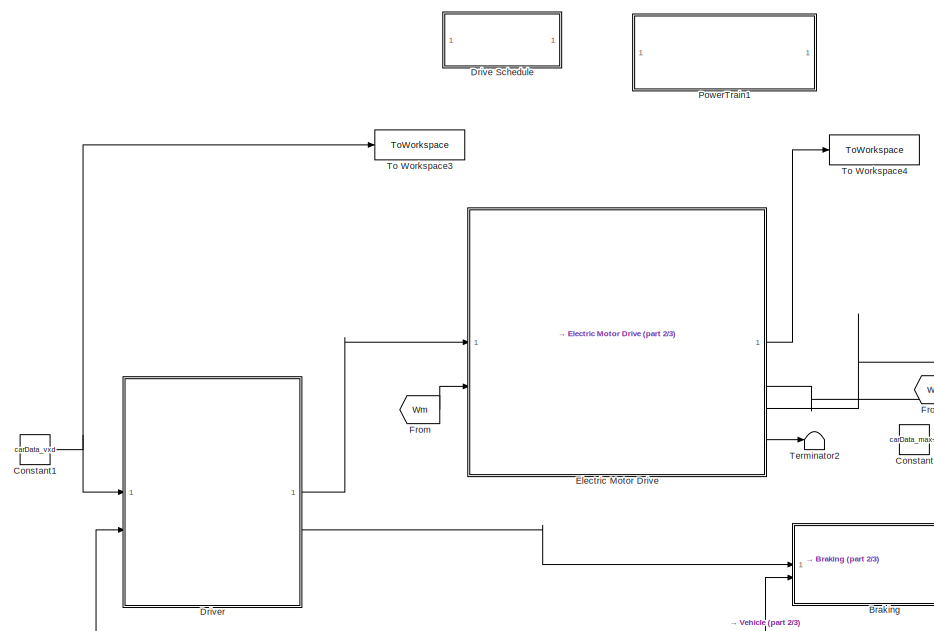
[diagram: root canvas - part 1/3, left side, full height]
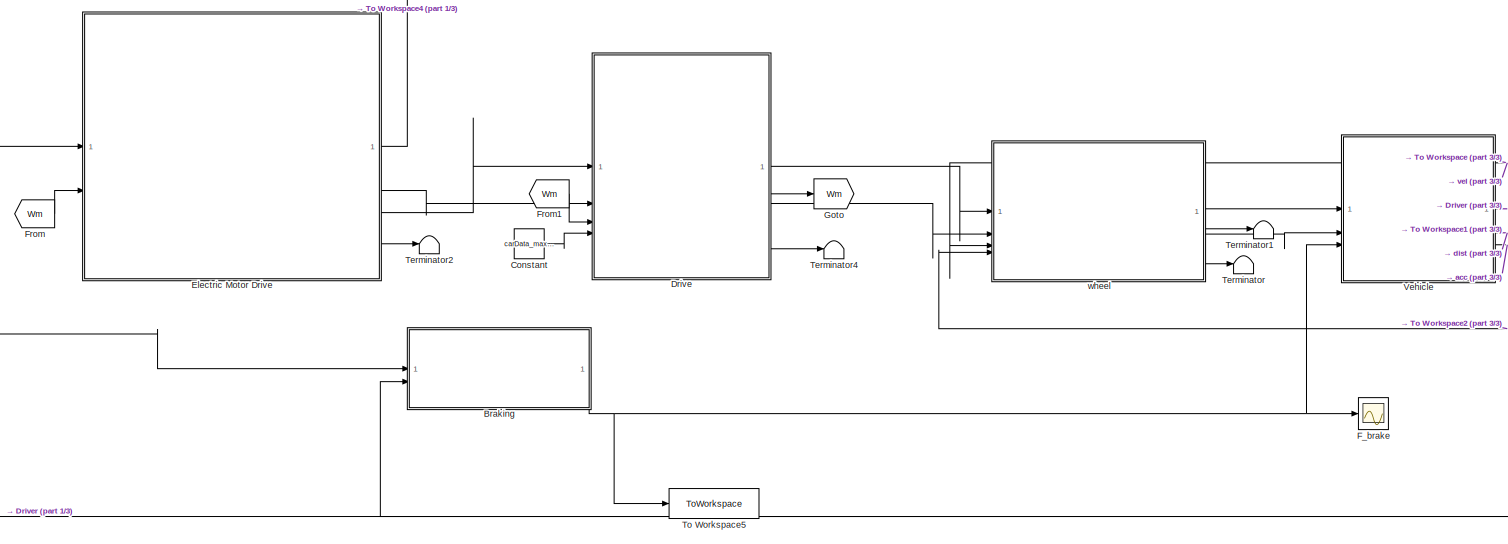
[diagram: root canvas - part 2/3, middle left region]
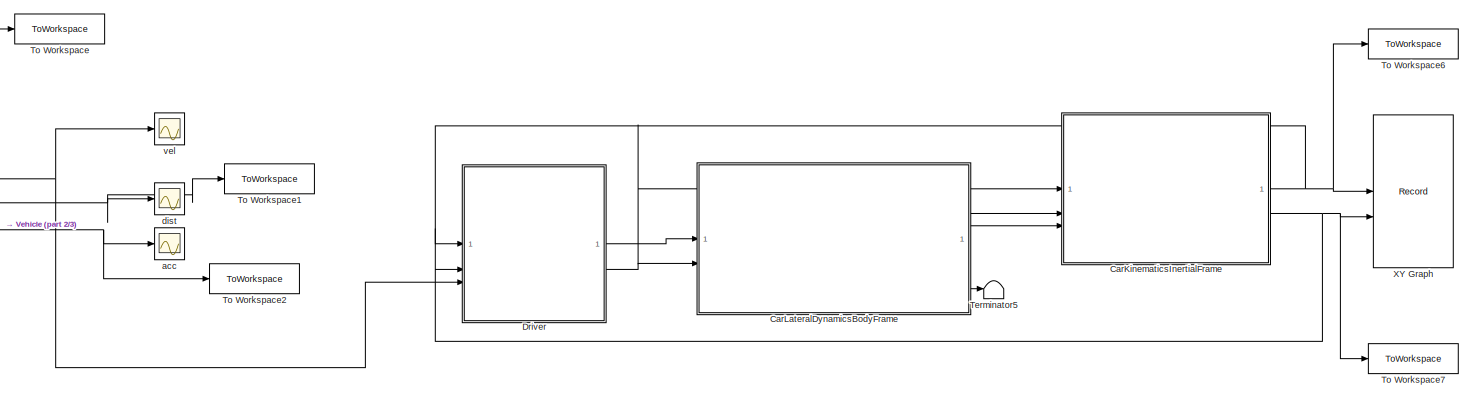
[diagram: root canvas - part 3/3, middle right region]
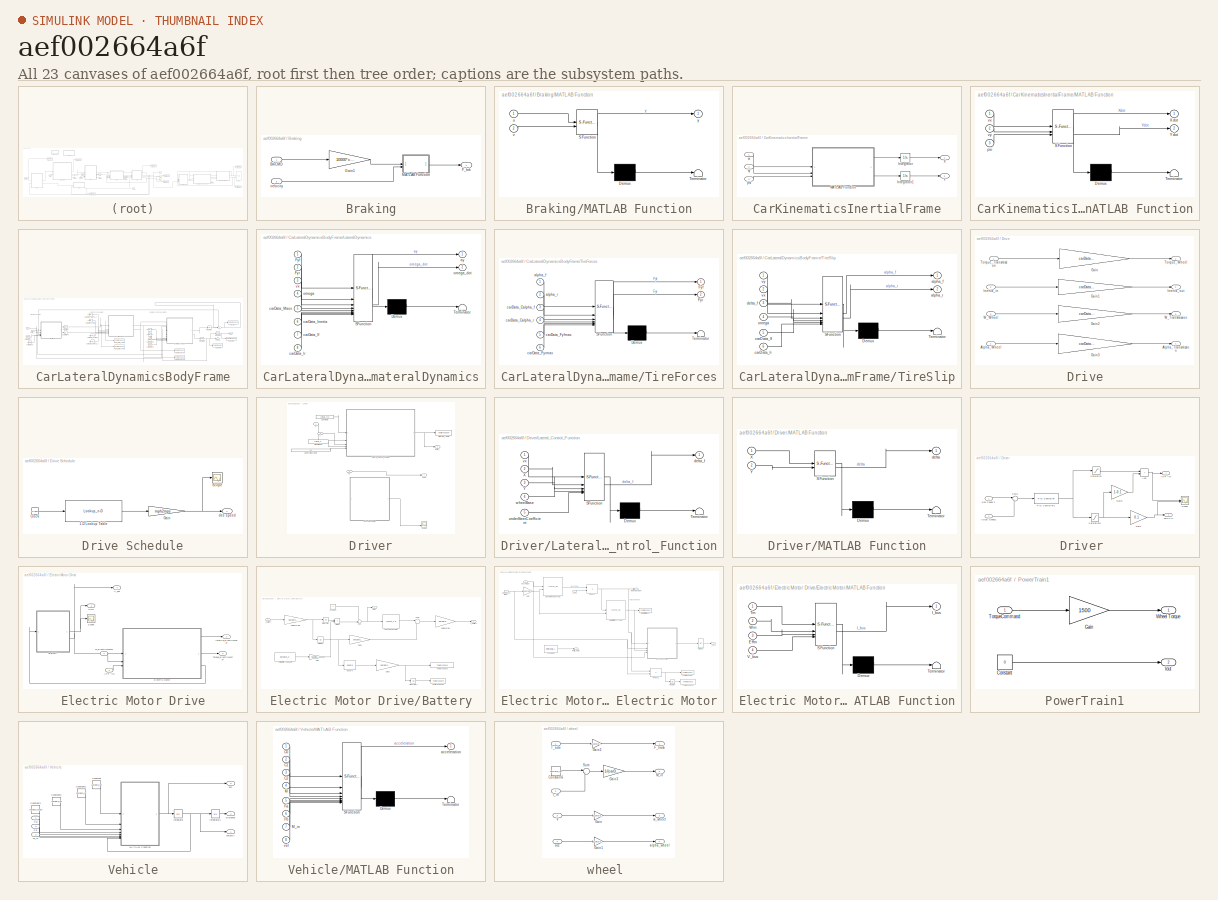
[diagram: thumbnail index - all 23 canvases of the model, root first then tree order]
MODEL slx_aef002664a6f
KIND model
CONFIG AbsTol = auto
CONFIG EnableMultiTasking = off
CONFIG FixedStep = 0.01
CONFIG MaxStep = auto
CONFIG MinStep = auto
CONFIG RelTol = 1e-3
CONFIG SampleTimeConstraint = Unconstrained
CONFIG SolverName = VariableStepAuto
CONFIG StartTime = 0.0
CONFIG StopTime = 1000
BLOCK [SubSystem] Braking
BLOCK [Inport] Braking/BrkCMD 
BLOCK [Outport] Braking/F_brk 
  VectorParamsAs1DForOutWhenUnconnected = off
BLOCK [Gain] Braking/Gain1
  Gain = 10000*carData_r
BLOCK [SubSystem] Braking/MATLAB Function
  ErrorFcn = Stateflow.Translate.translate
  PermitHierarchicalResolution = ExplicitOnly
  SFBlockType = MATLAB Function
  TreatAsAtomicUnit = on
BLOCK [Demux] Braking/MATLAB Function/ Demux 
  Outputs = 1
BLOCK [S-Function] Braking/MATLAB Function/ SFunction 
  EnableBusSupport = on
  FunctionName = sf_sfun
  PortCounts = [2 2]
  SFcnIsStateOwnerBlock = off
  SFunctionDeploymentMode = off
  Tag = Stateflow S-Function 7
BLOCK [Terminator] Braking/MATLAB Function/ Terminator 
BLOCK [Inport] Braking/MATLAB Function/u
BLOCK [Inport] Braking/MATLAB Function/v
  Port = 2
BLOCK [Outport] Braking/MATLAB Function/y
BLOCK [Inport] Braking/velocity 
  Port = 2
BLOCK [SubSystem] CarKinematicsInertialFrame
BLOCK [Integrator] CarKinematicsInertialFrame/Integrator
  InitialCondition = carData_init_X0
BLOCK [Integrator] CarKinematicsInertialFrame/Integrator1
  InitialCondition = carData_init_Y0
BLOCK [SubSystem] CarKinematicsInertialFrame/MATLAB Function
  ErrorFcn = Stateflow.Translate.translate
  PermitHierarchicalResolution = ExplicitOnly
  SFBlockType = MATLAB Function
  TreatAsAtomicUnit = on
BLOCK [Demux] CarKinematicsInertialFrame/MATLAB Function/ Demux 
  Outputs = 1
BLOCK [S-Function] CarKinematicsInertialFrame/MATLAB Function/ SFunction 
  EnableBusSupport = on
  FunctionName = sf_sfun
  PortCounts = [3 3]
  SFcnIsStateOwnerBlock = off
  SFunctionDeploymentMode = off
  Tag = Stateflow S-Function 1
BLOCK [Terminator] CarKinematicsInertialFrame/MATLAB Function/ Terminator 
BLOCK [Outport] CarKinematicsInertialFrame/MATLAB Function/Xdot
BLOCK [Outport] CarKinematicsInertialFrame/MATLAB Function/Ydot
  Port = 2
BLOCK [Inport] CarKinematicsInertialFrame/MATLAB Function/psi
  Port = 3
BLOCK [Inport] CarKinematicsInertialFrame/MATLAB Function/vx
BLOCK [Inport] CarKinematicsInertialFrame/MATLAB Function/vy
  Port = 2
BLOCK [Outport] CarKinematicsInertialFrame/X
BLOCK [Outport] CarKinematicsInertialFrame/Y
  Port = 2
BLOCK [Inport] CarKinematicsInertialFrame/psi
  Port = 3
BLOCK [Inport] CarKinematicsInertialFrame/vx
BLOCK [Inport] CarKinematicsInertialFrame/vy
  Port = 2
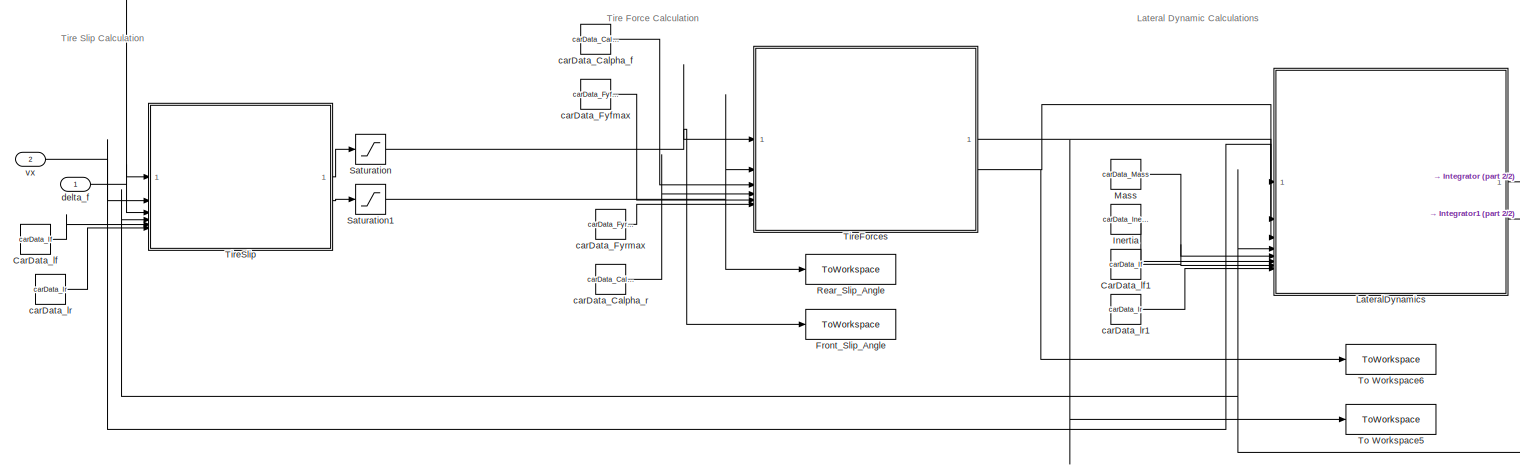
[diagram: CarLateralDynamicsBodyFrame - part 1/2, most of the canvas]
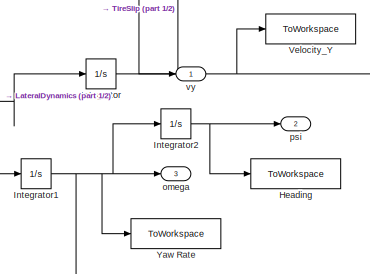
[diagram: CarLateralDynamicsBodyFrame - part 2/2, middle right region]
BLOCK [SubSystem] CarLateralDynamicsBodyFrame
BLOCK [Constant] CarLateralDynamicsBodyFrame/CarData_lf
  Value = carData_lf
BLOCK [Constant] CarLateralDynamicsBodyFrame/CarData_lf1
  Value = carData_lf
BLOCK [ToWorkspace] CarLateralDynamicsBodyFrame/Front_Slip_Angle
  FixptAsFi = on
  MaxDataPoints = inf
  SampleTime = -1
  SaveFormat = Timeseries
  VariableName = alpha_f
BLOCK [ToWorkspace] CarLateralDynamicsBodyFrame/Heading
  FixptAsFi = on
  MaxDataPoints = inf
  SampleTime = -1
  SaveFormat = Timeseries
  VariableName = psi
BLOCK [Constant] CarLateralDynamicsBodyFrame/Inertia
  Value = carData_Inertia
BLOCK [Integrator] CarLateralDynamicsBodyFrame/Integrator
  InitialCondition = carData_init_vy0
BLOCK [Integrator] CarLateralDynamicsBodyFrame/Integrator1
  InitialCondition = carData_init_omega0
BLOCK [Integrator] CarLateralDynamicsBodyFrame/Integrator2
  InitialCondition = carData_init_psi0
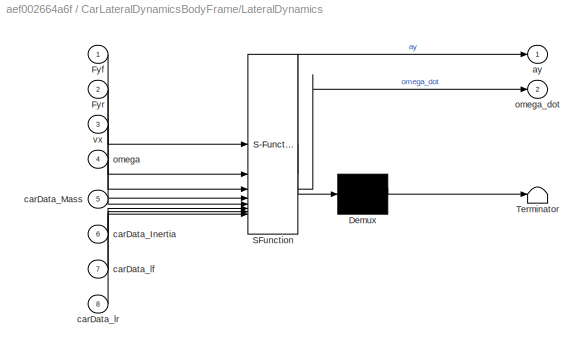
BLOCK [SubSystem] CarLateralDynamicsBodyFrame/LateralDynamics
  ErrorFcn = Stateflow.Translate.translate
  PermitHierarchicalResolution = ExplicitOnly
  SFBlockType = MATLAB Function
  TreatAsAtomicUnit = on
BLOCK [Demux] CarLateralDynamicsBodyFrame/LateralDynamics/ Demux 
  Outputs = 1
BLOCK [S-Function] CarLateralDynamicsBodyFrame/LateralDynamics/ SFunction 
  EnableBusSupport = on
  FunctionName = sf_sfun
  PortCounts = [8 3]
  SFcnIsStateOwnerBlock = off
  SFunctionDeploymentMode = off
  Tag = Stateflow S-Function 4
BLOCK [Terminator] CarLateralDynamicsBodyFrame/LateralDynamics/ Terminator 
BLOCK [Inport] CarLateralDynamicsBodyFrame/LateralDynamics/Fyf
BLOCK [Inport] CarLateralDynamicsBodyFrame/LateralDynamics/Fyr
  Port = 2
BLOCK [Outport] CarLateralDynamicsBodyFrame/LateralDynamics/ay
BLOCK [Inport] CarLateralDynamicsBodyFrame/LateralDynamics/carData_Inertia
  Port = 6
BLOCK [Inport] CarLateralDynamicsBodyFrame/LateralDynamics/carData_Mass
  Port = 5
BLOCK [Inport] CarLateralDynamicsBodyFrame/LateralDynamics/carData_lf
  Port = 7
BLOCK [Inport] CarLateralDynamicsBodyFrame/LateralDynamics/carData_lr
  Port = 8
BLOCK [Inport] CarLateralDynamicsBodyFrame/LateralDynamics/omega
  Port = 4
BLOCK [Outport] CarLateralDynamicsBodyFrame/LateralDynamics/omega_dot
  Port = 2
BLOCK [Inport] CarLateralDynamicsBodyFrame/LateralDynamics/vx
  Port = 3
BLOCK [Constant] CarLateralDynamicsBodyFrame/Mass
  Value = carData_Mass
BLOCK [ToWorkspace] CarLateralDynamicsBodyFrame/Rear_Slip_Angle
  FixptAsFi = on
  MaxDataPoints = inf
  SampleTime = -1
  SaveFormat = Timeseries
  VariableName = alpha_r
BLOCK [Saturate] CarLateralDynamicsBodyFrame/Saturation
  LowerLimit = -carData_maxAlpha
  UpperLimit = carData_maxAlpha
BLOCK [Saturate] CarLateralDynamicsBodyFrame/Saturation1
  LowerLimit = -carData_maxAlpha
  UpperLimit = carData_maxAlpha
BLOCK [SubSystem] CarLateralDynamicsBodyFrame/TireForces
  ErrorFcn = Stateflow.Translate.translate
  PermitHierarchicalResolution = ExplicitOnly
  SFBlockType = MATLAB Function
  TreatAsAtomicUnit = on
BLOCK [Demux] CarLateralDynamicsBodyFrame/TireForces/ Demux 
  Outputs = 1
BLOCK [S-Function] CarLateralDynamicsBodyFrame/TireForces/ SFunction 
  EnableBusSupport = on
  FunctionName = sf_sfun
  PortCounts = [6 3]
  SFcnIsStateOwnerBlock = off
  SFunctionDeploymentMode = off
  Tag = Stateflow S-Function 5
BLOCK [Terminator] CarLateralDynamicsBodyFrame/TireForces/ Terminator 
BLOCK [Outport] CarLateralDynamicsBodyFrame/TireForces/Fyf
BLOCK [Outport] CarLateralDynamicsBodyFrame/TireForces/Fyr
  Port = 2
BLOCK [Inport] CarLateralDynamicsBodyFrame/TireForces/alpha_f
BLOCK [Inport] CarLateralDynamicsBodyFrame/TireForces/alpha_r
  Port = 2
BLOCK [Inport] CarLateralDynamicsBodyFrame/TireForces/carData_Calpha_f
  Port = 3
BLOCK [Inport] CarLateralDynamicsBodyFrame/TireForces/carData_Calpha_r
  Port = 4
BLOCK [Inport] CarLateralDynamicsBodyFrame/TireForces/carData_Fyfmax
  Port = 5
BLOCK [Inport] CarLateralDynamicsBodyFrame/TireForces/carData_Fyrmax
  Port = 6
BLOCK [SubSystem] CarLateralDynamicsBodyFrame/TireSlip
  ErrorFcn = Stateflow.Translate.translate
  PermitHierarchicalResolution = ExplicitOnly
  SFBlockType = MATLAB Function
  TreatAsAtomicUnit = on
BLOCK [Demux] CarLateralDynamicsBodyFrame/TireSlip/ Demux 
  Outputs = 1
BLOCK [S-Function] CarLateralDynamicsBodyFrame/TireSlip/ SFunction 
  EnableBusSupport = on
  FunctionName = sf_sfun
  PortCounts = [6 3]
  SFcnIsStateOwnerBlock = off
  SFunctionDeploymentMode = off
  Tag = Stateflow S-Function 6
BLOCK [Terminator] CarLateralDynamicsBodyFrame/TireSlip/ Terminator 
BLOCK [Outport] CarLateralDynamicsBodyFrame/TireSlip/alpha_f
BLOCK [Outport] CarLateralDynamicsBodyFrame/TireSlip/alpha_r
  Port = 2
BLOCK [Inport] CarLateralDynamicsBodyFrame/TireSlip/carData_lf
  Port = 5
BLOCK [Inport] CarLateralDynamicsBodyFrame/TireSlip/carData_lr
  Port = 6
BLOCK [Inport] CarLateralDynamicsBodyFrame/TireSlip/delta_f
  Port = 3
BLOCK [Inport] CarLateralDynamicsBodyFrame/TireSlip/omega
  Port = 4
BLOCK [Inport] CarLateralDynamicsBodyFrame/TireSlip/vx
  Port = 2
BLOCK [Inport] CarLateralDynamicsBodyFrame/TireSlip/vy
BLOCK [ToWorkspace] CarLateralDynamicsBodyFrame/To Workspace5
  FixptAsFi = on
  MaxDataPoints = inf
  SampleTime = -1
  SaveFormat = Timeseries
  VariableName = Fyf
BLOCK [ToWorkspace] CarLateralDynamicsBodyFrame/To Workspace6
  FixptAsFi = on
  MaxDataPoints = inf
  SampleTime = -1
  SaveFormat = Timeseries
  VariableName = Fyr
BLOCK [ToWorkspace] CarLateralDynamicsBodyFrame/Velocity_Y
  FixptAsFi = on
  MaxDataPoints = inf
  SampleTime = -1
  SaveFormat = Timeseries
  VariableName = vy
BLOCK [ToWorkspace] CarLateralDynamicsBodyFrame/Yaw Rate
  FixptAsFi = on
  MaxDataPoints = inf
  SampleTime = -1
  SaveFormat = Timeseries
  VariableName = omega
BLOCK [Constant] CarLateralDynamicsBodyFrame/carData_Calpha_f
  Value = carData_Calpha_f
BLOCK [Constant] CarLateralDynamicsBodyFrame/carData_Calpha_r
  Value = carData_Calpha_r
BLOCK [Constant] CarLateralDynamicsBodyFrame/carData_Fyfmax
  Value = carData_Fyfmax
BLOCK [Constant] CarLateralDynamicsBodyFrame/carData_Fyrmax
  Value = carData_Fyrmax
BLOCK [Constant] CarLateralDynamicsBodyFrame/carData_lr
  Value = carData_lr
BLOCK [Constant] CarLateralDynamicsBodyFrame/carData_lr1
  Value = carData_lr
BLOCK [Inport] CarLateralDynamicsBodyFrame/delta_f
BLOCK [Outport] CarLateralDynamicsBodyFrame/omega
  Port = 3
BLOCK [Outport] CarLateralDynamicsBodyFrame/psi
  Port = 2
BLOCK [Inport] CarLateralDynamicsBodyFrame/vx
  Port = 2
BLOCK [Outport] CarLateralDynamicsBodyFrame/vy
BLOCK [Constant] Constant
  Value = carData_maxAlpha
BLOCK [Constant] Constant1
  Value = carData_vxd
BLOCK [SubSystem] Drive
BLOCK [SubSystem] Drive Schedule
  Commented = on
BLOCK [Lookup_n-D] Drive Schedule/1-D Lookup Table
  BreakpointsForDimension1 = Time
  InputPortMap = u0
  InternalRulePriority = Speed
  NumberOfTableDimensions = 1
  RndMeth = Simplest
  Table = DriveData
BLOCK [Clock] Drive Schedule/Clock
  DisplayTime = on
BLOCK [Gain] Drive Schedule/Gain
  Gain = mph2mps
BLOCK [Scope] Drive Schedule/Scope
  Floating = off
  NumInputPorts = 1
  ScopeSpecificationString = Simulink.scopes.TimeScopeBlockCfg('CurrentConfiguration', extmgr.ConfigurationSet(extmgr.Configuration('Core','General UI',true),extmgr.Configuration('Core','Source UI',true),extmgr.Configuration('Sources','WiredSimulink',true,'DataLoggingVariableName','ScopeData4'),extmgr.Configuration('Visuals','Time Domain',true,'SerializedDisplays',{struct('MinYLimReal','-3.1684','MaxYLimReal','28.51556','YLab...<+1407ch>
BLOCK [Outport] Drive Schedule/des speed 
  VectorParamsAs1DForOutWhenUnconnected = off
BLOCK [Outport] Drive/Alpha_Transmission
  Port = 4
BLOCK [Inport] Drive/Alpha_Wheel
  Port = 4
BLOCK [Gain] Drive/Gain
  Gain = carData_FDG
BLOCK [Gain] Drive/Gain1
  Gain = carData_FDG^2
BLOCK [Gain] Drive/Gain2
  Gain = carData_FDG
BLOCK [Gain] Drive/Gain3
  Gain = carData_FDG
BLOCK [Inport] Drive/Inertia_in
  Port = 2
BLOCK [Outport] Drive/Inertia_out
  Port = 2
BLOCK [Inport] Drive/Torque_Transmission 
BLOCK [Outport] Drive/Torque_Wheel
BLOCK [Outport] Drive/W_Transmission
  Port = 3
BLOCK [Inport] Drive/W_Wheel
  Port = 3
BLOCK [SubSystem] Driver
BLOCK [SubSystem] Driver 
BLOCK [Outport] Driver /APP (%)
BLOCK [Inport] Driver /Actual Speed1
  Port = 2
BLOCK [Sum] Driver /Add
  IconShape = rectangular
BLOCK [Inport] Driver /Des Speed 1
BLOCK [Outport] Driver /FBPP%
  Port = 2
BLOCK [Gain] Driver /Gain
  Gain = 0.1
BLOCK [Gain] Driver /Gain1
  Gain = 1-0.1
BLOCK [Reference] Driver /PID Controller1  REF=slpidlib/PID Controller
  SourceBlock = slpidlib/PID Controller
  SourceType = PID 1dof
BLOCK [Saturate] Driver /Saturation
BLOCK [Saturate] Driver /Saturation1
BLOCK [Scope] Driver /Scope
  Floating = off
  NumInputPorts = 2
  ScopeSpecificationString = Simulink.scopes.TimeScopeBlockCfg('CurrentConfiguration', extmgr.ConfigurationSet(extmgr.Configuration('Core','General UI',true),extmgr.Configuration('Core','Source UI',true),extmgr.Configuration('Sources','WiredSimulink',true,'DataLoggingVariableName','ScopeData1'),extmgr.Configuration('Visuals','Time Domain',true),extmgr.Configuration('Tools','Plot Navigation',true),extmgr.Configuration('Tools',...<+40ch>
BLOCK [Sum] Driver /Sum1
  Inputs = |+-
BLOCK [Constant] Driver/Constant2
  Value = carData_vxd
BLOCK [SubSystem] Driver/Lateral_Control_Function
  ErrorFcn = Stateflow.Translate.translate
  PermitHierarchicalResolution = ExplicitOnly
  SFBlockType = MATLAB Function
  TreatAsAtomicUnit = on
BLOCK [Demux] Driver/Lateral_Control_Function/ Demux 
  Outputs = 1
BLOCK [S-Function] Driver/Lateral_Control_Function/ SFunction 
  EnableBusSupport = on
  FunctionName = sf_sfun
  PortCounts = [5 2]
  SFcnIsStateOwnerBlock = off
  SFunctionDeploymentMode = off
  Tag = Stateflow S-Function 8
BLOCK [Terminator] Driver/Lateral_Control_Function/ Terminator 
BLOCK [Inport] Driver/Lateral_Control_Function/X
  Port = 2
BLOCK [Inport] Driver/Lateral_Control_Function/Y
  Port = 3
BLOCK [Outport] Driver/Lateral_Control_Function/delta_f
BLOCK [Inport] Driver/Lateral_Control_Function/underSteerCoefficient
  Port = 5
BLOCK [Inport] Driver/Lateral_Control_Function/vx
BLOCK [Inport] Driver/Lateral_Control_Function/wheelBase
  Port = 4
BLOCK [SubSystem] Driver/MATLAB Function
  Commented = on
  ErrorFcn = Stateflow.Translate.translate
  PermitHierarchicalResolution = ExplicitOnly
  SFBlockType = MATLAB Function
  TreatAsAtomicUnit = on
BLOCK [Demux] Driver/MATLAB Function/ Demux 
  Outputs = 1
BLOCK [S-Function] Driver/MATLAB Function/ SFunction 
  EnableBusSupport = on
  FunctionName = sf_sfun
  PortCounts = [2 2]
  SFcnIsStateOwnerBlock = off
  SFunctionDeploymentMode = off
  Tag = Stateflow S-Function 9
BLOCK [Terminator] Driver/MATLAB Function/ Terminator 
BLOCK [Inport] Driver/MATLAB Function/X
BLOCK [Inport] Driver/MATLAB Function/Y
  Port = 2
BLOCK [Outport] Driver/MATLAB Function/delta
BLOCK [Scope] Driver/Scope
  Commented = on
  Floating = off
  NumInputPorts = 3
  ScopeSpecificationString = Simulink.scopes.TimeScopeBlockCfg('CurrentConfiguration', extmgr.ConfigurationSet(extmgr.Configuration('Core','General UI',true),extmgr.Configuration('Core','Source UI',true),extmgr.Configuration('Sources','WiredSimulink',true),extmgr.Configuration('Visuals','Time Domain',true,'SerializedDisplays',{struct('MinYLimReal','-114.8982','MaxYLimReal','1034.08378','YLabelReal','','MinYLimMag',' 0.00000',...<+2714ch>
BLOCK [ToWorkspace] Driver/Steering_Angle
  FixptAsFi = on
  MaxDataPoints = inf
  SampleTime = -1
  SaveFormat = Timeseries
  VariableName = delta_f
BLOCK [Constant] Driver/UnderSteerCoeff
  Value = Cd
BLOCK [Inport] Driver/VX
  Port = 3
BLOCK [Outport] Driver/Vxd1
  Port = 2
BLOCK [Constant] Driver/WheelBase
  Value = carData_lf + carData_lr
BLOCK [Inport] Driver/X
BLOCK [Inport] Driver/Y
  Port = 2
BLOCK [Outport] Driver/delta_f
BLOCK [SubSystem] Electric Motor Drive
BLOCK [Inport] Electric Motor Drive/APP (%)
BLOCK [SubSystem] Electric Motor Drive/Battery
BLOCK [Gain] Electric Motor Drive/Battery/Cells in Parallel
  Gain = batData_numParallel
BLOCK [Gain] Electric Motor Drive/Battery/Cells in Series
  Gain = batData_numSeries
BLOCK [Constant] Electric Motor Drive/Battery/Constant
BLOCK [Product] Electric Motor Drive/Battery/Divide
  Inputs = */
BLOCK [Gain] Electric Motor Drive/Battery/Gain
  Gain = 3600/batData_numParallel
BLOCK [Gain] Electric Motor Drive/Battery/Gain1
  Gain = batData_Rint
BLOCK [Gain] Electric Motor Drive/Battery/Gain2
  Gain = batData_Rint
BLOCK [Inport] Electric Motor Drive/Battery/I_battery
BLOCK [Integrator] Electric Motor Drive/Battery/Integrator
BLOCK [Integrator] Electric Motor Drive/Battery/Integrator1
BLOCK [Lookup_n-D] Electric Motor Drive/Battery/OCV Lookup Table
  BreakpointsForDimension1 = batData_SOC
  BreakpointsForDimension3 = [5, 7]
  InputPortMap = u0
  InternalRulePriority = Speed
  NumberOfTableDimensions = 1
  RndMeth = Simplest
  Table = batData_OCV
BLOCK [Outport] Electric Motor Drive/Battery/SOC
BLOCK [Math] Electric Motor Drive/Battery/Square
  Operator = square
BLOCK [Sum] Electric Motor Drive/Battery/Sum
  Inputs = +-|
BLOCK [Sum] Electric Motor Drive/Battery/Sum1
  Inputs = |+-
BLOCK [ToWorkspace] Electric Motor Drive/Battery/To Workspace
  FixptAsFi = on
  MaxDataPoints = inf
  SampleTime = -1
  SaveFormat = Timeseries
  VariableName = BatteryPowerLosses
BLOCK [ToWorkspace] Electric Motor Drive/Battery/To Workspace1
  FixptAsFi = on
  MaxDataPoints = inf
  SampleTime = -1
  SaveFormat = Timeseries
  VariableName = BatteryEnergy
BLOCK [Constant] Electric Motor Drive/Battery/Total Battery Capacity
  Value = batData_C
BLOCK [UnitDelay] Electric Motor Drive/Battery/Unit Delay
  HasFrameUpgradeWarning = on
  SampleTime = -1
BLOCK [Outport] Electric Motor Drive/Battery/V_battery
  Port = 2
BLOCK [SubSystem] Electric Motor Drive/Electric Motor
BLOCK [Inport] Electric Motor Drive/Electric Motor/APP (%)
  Port = 3
BLOCK [Inport] Electric Motor Drive/Electric Motor/Bus Voltage
BLOCK [Constant] Electric Motor Drive/Electric Motor/Constant1
  Value = motorData_Inertia
BLOCK [Gain] Electric Motor Drive/Electric Motor/Gain
  Gain = rps2rpm
BLOCK [Outport] Electric Motor Drive/Electric Motor/I_bus
  Port = 3
BLOCK [Outport] Electric Motor Drive/Electric Motor/Inertia_Motor
BLOCK [Integrator] Electric Motor Drive/Electric Motor/Integrator
BLOCK [SubSystem] Electric Motor Drive/Electric Motor/MATLAB Function
  ErrorFcn = Stateflow.Translate.translate
  PermitHierarchicalResolution = ExplicitOnly
  SFBlockType = MATLAB Function
  TreatAsAtomicUnit = on
BLOCK [Demux] Electric Motor Drive/Electric Motor/MATLAB Function/ Demux 
  Outputs = 1
BLOCK [S-Function] Electric Motor Drive/Electric Motor/MATLAB Function/ SFunction 
  EnableBusSupport = on
  FunctionName = sf_sfun
  PortCounts = [4 2]
  SFcnIsStateOwnerBlock = off
  SFunctionDeploymentMode = off
  Tag = Stateflow S-Function 3
BLOCK [Terminator] Electric Motor Drive/Electric Motor/MATLAB Function/ Terminator 
BLOCK [Inport] Electric Motor Drive/Electric Motor/MATLAB Function/Effm
  Port = 3
BLOCK [Outport] Electric Motor Drive/Electric Motor/MATLAB Function/I_bus
BLOCK [Inport] Electric Motor Drive/Electric Motor/MATLAB Function/Tm
BLOCK [Inport] Electric Motor Drive/Electric Motor/MATLAB Function/V_bus
  Port = 4
BLOCK [Inport] Electric Motor Drive/Electric Motor/MATLAB Function/Wm
  Port = 2
BLOCK [Lookup_n-D] Electric Motor Drive/Electric Motor/Max Motor Torque Table
  BreakpointsForDimension1 = motorData_vbus
  BreakpointsForDimension2 = motorData_rpm
  BreakpointsForDimension3 = [5, 7]
  InputPortMap = u0,u1
  InternalRulePriority = Speed
  RndMeth = Simplest
  Table = motorData_maxtorque
BLOCK [ToWorkspace] Electric Motor Drive/Electric Motor/Motor Efficiency
  FixptAsFi = on
  MaxDataPoints = inf
  SampleTime = -1
  SaveFormat = Timeseries
  VariableName = efficiency_motor
BLOCK [Lookup_n-D] Electric Motor Drive/Electric Motor/Motor Efficiency Table
  BreakpointsForDimension1 = motorData_eta_torque
  BreakpointsForDimension2 = motorData_eta_speed
  BreakpointsForDimension3 = [5, 7]
  InputPortMap = u0,u1
  InternalRulePriority = Speed
  RndMeth = Simplest
  Table = motorData_eta_val
BLOCK [Inport] Electric Motor Drive/Electric Motor/Motor Speed (rad//s)
  Port = 2
BLOCK [Outport] Electric Motor Drive/Electric Motor/Motor Torque (Nm)
  Port = 2
BLOCK [Product] Electric Motor Drive/Electric Motor/Product
BLOCK [Product] Electric Motor Drive/Electric Motor/Product1
BLOCK [ToWorkspace] Electric Motor Drive/Electric Motor/To Workspace
  FixptAsFi = on
  MaxDataPoints = inf
  SampleTime = -1
  SaveFormat = Timeseries
  VariableName = MotorPower
BLOCK [ToWorkspace] Electric Motor Drive/Electric Motor/To Workspace1
  FixptAsFi = on
  MaxDataPoints = inf
  SampleTime = -1
  SaveFormat = Timeseries
  VariableName = MotorEnergy
BLOCK [UnitDelay] Electric Motor Drive/Electric Motor/Unit Delay
  HasFrameUpgradeWarning = on
  SampleTime = -1
BLOCK [Outport] Electric Motor Drive/Intertia_ElectricMotor
  Port = 2
BLOCK [Outport] Electric Motor Drive/SOC
BLOCK [Scope] Electric Motor Drive/Scope
  Floating = off
  NumInputPorts = 1
  ScopeSpecificationString = Simulink.scopes.TimeScopeBlockCfg('CurrentConfiguration', extmgr.ConfigurationSet(extmgr.Configuration('Core','General UI',true),extmgr.Configuration('Core','Source UI',true),extmgr.Configuration('Sources','WiredSimulink',true,'DataLoggingVariableName','ScopeData1'),extmgr.Configuration('Visuals','Time Domain',true),extmgr.Configuration('Tools','Plot Navigation',true),extmgr.Configuration('Tools',...<+40ch>
BLOCK [Outport] Electric Motor Drive/Torque_ElectricMotor
  Port = 3
BLOCK [Outport] Electric Motor Drive/V_bat
  Port = 4
BLOCK [Inport] Electric Motor Drive/W_ElectricMotor
  Port = 2
BLOCK [Scope] F_brake
  Floating = off
  NumInputPorts = 1
  ScopeSpecificationString = Simulink.scopes.TimeScopeBlockCfg('CurrentConfiguration', extmgr.ConfigurationSet(extmgr.Configuration('Core','General UI',true),extmgr.Configuration('Core','Source UI',true),extmgr.Configuration('Sources','WiredSimulink',true,'DataLoggingVariableName','ScopeData4'),extmgr.Configuration('Visuals','Time Domain',true,'SerializedDisplays',{struct('MinYLimReal','-450.00000','MaxYLimReal','4050.00000',...<+1384ch>
BLOCK [From] From
  GotoTag = Wm
BLOCK [From] From1
  GotoTag = Wm
BLOCK [Goto] Goto
  GotoTag = Wm
BLOCK [SubSystem] PowerTrain1
  Commented = on
BLOCK [Constant] PowerTrain1/Constant
  Value = 0
BLOCK [Gain] PowerTrain1/Gain
  Gain = 1500
BLOCK [Outport] PowerTrain1/Iout
  Port = 2
BLOCK [Inport] PowerTrain1/TorqueCommand
BLOCK [Outport] PowerTrain1/Wheel Torque
BLOCK [Terminator] Terminator
BLOCK [Terminator] Terminator1
BLOCK [Terminator] Terminator2
BLOCK [Terminator] Terminator4
BLOCK [Terminator] Terminator5
BLOCK [ToWorkspace] To Workspace
  FixptAsFi = on
  MaxDataPoints = inf
  SampleTime = -1
  SaveFormat = Timeseries
  VariableName = vel
BLOCK [ToWorkspace] To Workspace1
  FixptAsFi = on
  MaxDataPoints = inf
  SampleTime = -1
  SaveFormat = Timeseries
  VariableName = dist
BLOCK [ToWorkspace] To Workspace2
  FixptAsFi = on
  MaxDataPoints = inf
  SampleTime = -1
  SaveFormat = Timeseries
  VariableName = acc
BLOCK [ToWorkspace] To Workspace3
  FixptAsFi = on
  MaxDataPoints = inf
  SampleTime = -1
  SaveFormat = Timeseries
  VariableName = RefSpd
BLOCK [ToWorkspace] To Workspace4
  FixptAsFi = on
  MaxDataPoints = inf
  SampleTime = -1
  SaveFormat = Timeseries
  VariableName = SOC
BLOCK [ToWorkspace] To Workspace5
  FixptAsFi = on
  MaxDataPoints = inf
  SampleTime = -1
  SaveFormat = Timeseries
  VariableName = brake
BLOCK [ToWorkspace] To Workspace6
  FixptAsFi = on
  MaxDataPoints = inf
  SampleTime = -1
  Save2DSignal = 2-D array (concatenate along first dimension)
  SaveFormat = Structure With Time
  VariableName = X
BLOCK [ToWorkspace] To Workspace7
  FixptAsFi = on
  MaxDataPoints = inf
  SampleTime = -1
  Save2DSignal = 2-D array (concatenate along first dimension)
  SaveFormat = Structure With Time
  VariableName = Y
BLOCK [SubSystem] Vehicle
BLOCK [Constant] Vehicle/Constant
  Value = carData_C0
BLOCK [Constant] Vehicle/Constant1
  Value = carData_C1
BLOCK [Constant] Vehicle/Constant2
  Value = carData_C2
BLOCK [Constant] Vehicle/Constant3
  Value = carData_Mass
BLOCK [Outport] Vehicle/Distance 
  Port = 2
  VectorParamsAs1DForOutWhenUnconnected = off
BLOCK [Inport] Vehicle/Fb 
  Port = 3
BLOCK [Inport] Vehicle/Fw 
BLOCK [Integrator] Vehicle/Integrator
  LimitOutput = on
  LowerSaturationLimit = 0
BLOCK [Integrator] Vehicle/Integrator1
BLOCK [SubSystem] Vehicle/MATLAB Function
  ErrorFcn = Stateflow.Translate.translate
  PermitHierarchicalResolution = ExplicitOnly
  SFBlockType = MATLAB Function
  TreatAsAtomicUnit = on
BLOCK [Demux] Vehicle/MATLAB Function/ Demux 
  Outputs = 1
BLOCK [S-Function] Vehicle/MATLAB Function/ SFunction 
  EnableBusSupport = on
  FunctionName = sf_sfun
  PortCounts = [8 2]
  SFcnIsStateOwnerBlock = off
  SFunctionDeploymentMode = off
  Tag = Stateflow S-Function 2
BLOCK [Terminator] Vehicle/MATLAB Function/ Terminator 
BLOCK [Inport] Vehicle/MATLAB Function/C0
BLOCK [Inport] Vehicle/MATLAB Function/C1
  Port = 2
BLOCK [Inport] Vehicle/MATLAB Function/C2
  Port = 3
BLOCK [Inport] Vehicle/MATLAB Function/Fa
  Port = 5
BLOCK [Inport] Vehicle/MATLAB Function/Fb
  Port = 6
BLOCK [Inport] Vehicle/MATLAB Function/M
  Port = 4
BLOCK [Inport] Vehicle/MATLAB Function/M_in
  Port = 7
BLOCK [Outport] Vehicle/MATLAB Function/acceleration
  VectorParamsAs1DForOutWhenUnconnected = off
BLOCK [Inport] Vehicle/MATLAB Function/vel
  Port = 8
BLOCK [Inport] Vehicle/M_in 
  Port = 2
BLOCK [Outport] Vehicle/acc
  Port = 3
BLOCK [Outport] Vehicle/velocity 
  VectorParamsAs1DForOutWhenUnconnected = off
BLOCK [Record] XY Graph
  CompatibilityTag = XY
  FileSettingsInternal = {"entries":[{"content":{"excelSettings":{"content":{},"type":"Streamout.ExcelSettings"}},"type":"Streamout.FileSettingStorage","uuid":""}],"packageUris":["http:\/\/schema.mathworks.com\/mf0\/streamout_blocks\/R2020a"],"version":"1.0"}
  Layout = [1 1]
  SignalsInternal = {"entries":[{"content":{"signals":[{"content":{"blockPath":[],"dimensions":[1],"domain":"","lineColor":"#7e2f8e","plots":[1],"port":1,"sid":[""],"signalID":9449,"signalName":"CarKinematicsInertialFrame:1"},"type":"RecordBlkView.Signal","uuid":""},{"content":{"blockPath":[],"dimensions":[1],"domain":"","lineColor":"#77ac30","plots":[1],"port":2,"sid":[""],"signalID":9453,"signalName":"CarKinematics...<+204ch>
  VisualizationBindings = {"xyplotplugin":{"info":[{"series":[{"bindingParametersList":[{"parameter":"X-Axis","signalID":9449,"signalName":"CarKinematicsInertialFrame:1"},{"parameter":"Y-Axis","signalID":9453,"signalName":"CarKinematicsInertialFrame:2"}],"seriesID":25132}],"subplotID":1}]}}
  st = -1
BLOCK [Scope] acc
  Floating = off
  NumInputPorts = 1
  ScopeSpecificationString = Simulink.scopes.TimeScopeBlockCfg('CurrentConfiguration', extmgr.ConfigurationSet(extmgr.Configuration('Core','General UI',true),extmgr.Configuration('Core','Source UI',true),extmgr.Configuration('Sources','WiredSimulink',true,'DataLoggingVariableName','ScopeData3'),extmgr.Configuration('Visuals','Time Domain',true,'SerializedDisplays',{struct('MinYLimReal','-12.30056','MaxYLimReal','74.14815','YL...<+1385ch>
BLOCK [Scope] dist
  Floating = off
  NumInputPorts = 1
  ScopeSpecificationString = Simulink.scopes.TimeScopeBlockCfg('CurrentConfiguration', extmgr.ConfigurationSet(extmgr.Configuration('Core','General UI',true),extmgr.Configuration('Core','Source UI',true),extmgr.Configuration('Sources','WiredSimulink',true,'DataLoggingVariableName','ScopeData2'),extmgr.Configuration('Visuals','Time Domain',true,'SerializedDisplays',{struct('MinYLimReal','-385.08236','MaxYLimReal','3465.74126',...<+1386ch>
BLOCK [Scope] vel
  Floating = off
  NumInputPorts = 1
  ScopeSpecificationString = Simulink.scopes.TimeScopeBlockCfg('CurrentConfiguration', extmgr.ConfigurationSet(extmgr.Configuration('Core','General UI',true),extmgr.Configuration('Core','Source UI',true),extmgr.Configuration('Sources','WiredSimulink',true,'DataLoggingVariableName','ScopeData1'),extmgr.Configuration('Visuals','Time Domain',true,'SerializedDisplays',{struct('MinYLimReal','-3.01671','MaxYLimReal','27.15039','YLa...<+1405ch>
BLOCK [SubSystem] wheel 
BLOCK [Constant] wheel /Constant6
  Value = carData_Iw
BLOCK [Outport] wheel /F_track
BLOCK [Gain] wheel /Gain
  Gain = 1/carData_r
BLOCK [Gain] wheel /Gain1
  Gain = 1/carData_r
BLOCK [Gain] wheel /Gain2
  Gain = 1/carData_r
BLOCK [Gain] wheel /Gain3
  Gain = 1/(carData_r*carData_r)
BLOCK [Inport] wheel /I_in
  Port = 2
BLOCK [Outport] wheel /M_in
  Port = 2
BLOCK [Sum] wheel /Sum
  Inputs = |++
BLOCK [Inport] wheel /T_axle
BLOCK [Inport] wheel /V
  Port = 3
BLOCK [Inport] wheel /acc
  Port = 4
BLOCK [Outport] wheel /alpha_wheel
  Port = 4
BLOCK [Outport] wheel /w_wheel
  Port = 3
ANNOTATION CarLateralDynamicsBodyFrame: Lateral Dynamic Calculations
ANNOTATION CarLateralDynamicsBodyFrame: Tire Force Calculation
ANNOTATION CarLateralDynamicsBodyFrame: Tire Slip Calculation
LINE Braking/BrkCMD :1 -> Braking/Gain1:1
LINE Braking/Gain1:1 -> Braking/MATLAB Function:1
LINE Braking/MATLAB Function:1 -> Braking/F_brk :1
LINE Braking/velocity :1 -> Braking/MATLAB Function:2
NET Braking:1 -> F_brake:1, To Workspace5:1, Vehicle:3
LINE CarKinematicsInertialFrame/Integrator1:1 -> CarKinematicsInertialFrame/Y:1
LINE CarKinematicsInertialFrame/Integrator:1 -> CarKinematicsInertialFrame/X:1
LINE CarKinematicsInertialFrame/MATLAB Function:1 -> CarKinematicsInertialFrame/Integrator:1
LINE CarKinematicsInertialFrame/MATLAB Function:2 -> CarKinematicsInertialFrame/Integrator1:1
LINE CarKinematicsInertialFrame/psi:1 -> CarKinematicsInertialFrame/MATLAB Function:3
LINE CarKinematicsInertialFrame/vx:1 -> CarKinematicsInertialFrame/MATLAB Function:1
LINE CarKinematicsInertialFrame/vy:1 -> CarKinematicsInertialFrame/MATLAB Function:2
NET CarKinematicsInertialFrame:1 -> Driver:1, To Workspace6:1, XY Graph:1
NET CarKinematicsInertialFrame:2 -> Driver:2, To Workspace7:1, XY Graph:2
LINE CarLateralDynamicsBodyFrame/CarData_lf1:1 -> CarLateralDynamicsBodyFrame/LateralDynamics:7
LINE CarLateralDynamicsBodyFrame/CarData_lf:1 -> CarLateralDynamicsBodyFrame/TireSlip:5
LINE CarLateralDynamicsBodyFrame/Inertia:1 -> CarLateralDynamicsBodyFrame/LateralDynamics:6
NET CarLateralDynamicsBodyFrame/Integrator1:1 -> CarLateralDynamicsBodyFrame/Integrator2:1, CarLateralDynamicsBodyFrame/LateralDynamics:4, CarLateralDynamicsBodyFrame/TireSlip:4, CarLateralDynamicsBodyFrame/Yaw Rate:1, CarLateralDynamicsBodyFrame/omega:1
NET CarLateralDynamicsBodyFrame/Integrator2:1 -> CarLateralDynamicsBodyFrame/Heading:1, CarLateralDynamicsBodyFrame/psi:1
NET CarLateralDynamicsBodyFrame/Integrator:1 -> CarLateralDynamicsBodyFrame/TireSlip:1, CarLateralDynamicsBodyFrame/Velocity_Y:1, CarLateralDynamicsBodyFrame/vy:1
LINE CarLateralDynamicsBodyFrame/LateralDynamics:1 -> CarLateralDynamicsBodyFrame/Integrator:1
LINE CarLateralDynamicsBodyFrame/LateralDynamics:2 -> CarLateralDynamicsBodyFrame/Integrator1:1
LINE CarLateralDynamicsBodyFrame/Mass:1 -> CarLateralDynamicsBodyFrame/LateralDynamics:5
NET CarLateralDynamicsBodyFrame/Saturation1:1 -> CarLateralDynamicsBodyFrame/Rear_Slip_Angle:1, CarLateralDynamicsBodyFrame/TireForces:2
NET CarLateralDynamicsBodyFrame/Saturation:1 -> CarLateralDynamicsBodyFrame/Front_Slip_Angle:1, CarLateralDynamicsBodyFrame/TireForces:1
NET CarLateralDynamicsBodyFrame/TireForces:1 -> CarLateralDynamicsBodyFrame/LateralDynamics:1, CarLateralDynamicsBodyFrame/To Workspace5:1
NET CarLateralDynamicsBodyFrame/TireForces:2 -> CarLateralDynamicsBodyFrame/LateralDynamics:2, CarLateralDynamicsBodyFrame/To Workspace6:1
LINE CarLateralDynamicsBodyFrame/TireSlip:1 -> CarLateralDynamicsBodyFrame/Saturation:1
LINE CarLateralDynamicsBodyFrame/TireSlip:2 -> CarLateralDynamicsBodyFrame/Saturation1:1
LINE CarLateralDynamicsBodyFrame/carData_Calpha_f:1 -> CarLateralDynamicsBodyFrame/TireForces:3
LINE CarLateralDynamicsBodyFrame/carData_Calpha_r:1 -> CarLateralDynamicsBodyFrame/TireForces:4
LINE CarLateralDynamicsBodyFrame/carData_Fyfmax:1 -> CarLateralDynamicsBodyFrame/TireForces:5
LINE CarLateralDynamicsBodyFrame/carData_Fyrmax:1 -> CarLateralDynamicsBodyFrame/TireForces:6
LINE CarLateralDynamicsBodyFrame/carData_lr1:1 -> CarLateralDynamicsBodyFrame/LateralDynamics:8
LINE CarLateralDynamicsBodyFrame/carData_lr:1 -> CarLateralDynamicsBodyFrame/TireSlip:6
LINE CarLateralDynamicsBodyFrame/delta_f:1 -> CarLateralDynamicsBodyFrame/TireSlip:3
NET CarLateralDynamicsBodyFrame/vx:1 -> CarLateralDynamicsBodyFrame/LateralDynamics:3, CarLateralDynamicsBodyFrame/TireSlip:2
LINE CarLateralDynamicsBodyFrame:1 -> CarKinematicsInertialFrame:2
LINE CarLateralDynamicsBodyFrame:2 -> CarKinematicsInertialFrame:3
LINE CarLateralDynamicsBodyFrame:3 -> Terminator5:1
NET Constant1:1 -> Driver :1, To Workspace3:1
LINE Constant:1 -> Drive:4
LINE Drive Schedule/1-D Lookup Table:1 -> Drive Schedule/Gain:1
LINE Drive Schedule/Clock:1 -> Drive Schedule/1-D Lookup Table:1
NET Drive Schedule/Gain:1 -> Drive Schedule/Scope:1, Drive Schedule/des speed :1
LINE Drive/Alpha_Wheel:1 -> Drive/Gain3:1
LINE Drive/Gain1:1 -> Drive/Inertia_out:1
LINE Drive/Gain2:1 -> Drive/W_Transmission:1
LINE Drive/Gain3:1 -> Drive/Alpha_Transmission:1
LINE Drive/Gain:1 -> Drive/Torque_Wheel:1
LINE Drive/Inertia_in:1 -> Drive/Gain1:1
LINE Drive/Torque_Transmission :1 -> Drive/Gain:1
LINE Drive/W_Wheel:1 -> Drive/Gain2:1
LINE Drive:1 -> wheel :1
LINE Drive:2 -> wheel :2
LINE Drive:3 -> Goto:1
LINE Drive:4 -> Terminator4:1
LINE Driver /Actual Speed1:1 -> Driver /Sum1:2
NET Driver /Add:1 -> Driver /APP (%):1, Driver /Scope:1
LINE Driver /Des Speed 1:1 -> Driver /Sum1:1
LINE Driver /Gain1:1 -> Driver /Add:2
NET Driver /Gain:1 -> Driver /FBPP%:1, Driver /Scope:2
NET Driver /PID Controller1:1 -> Driver /Saturation1:1, Driver /Saturation:1
NET Driver /Saturation1:1 -> Driver /Gain1:1, Driver /Gain:1
LINE Driver /Saturation:1 -> Driver /Add:1
LINE Driver /Sum1:1 -> Driver /PID Controller1:1
LINE Driver :1 -> Electric Motor Drive:1
LINE Driver :2 -> Braking:1
LINE Driver/Constant2:1 -> Driver/Lateral_Control_Function:1
NET Driver/Lateral_Control_Function:1 -> Driver/Steering_Angle:1, Driver/delta_f:1
LINE Driver/MATLAB Function:1 -> Driver/Scope:3
LINE Driver/UnderSteerCoeff:1 -> Driver/Lateral_Control_Function:5
LINE Driver/VX:1 -> Driver/Vxd1:1
LINE Driver/WheelBase:1 -> Driver/Lateral_Control_Function:4
LINE Driver/X:1 -> Driver/Lateral_Control_Function:2
LINE Driver/Y:1 -> Driver/Lateral_Control_Function:3
LINE Driver:1 -> CarLateralDynamicsBodyFrame:1
NET Driver:2 -> CarKinematicsInertialFrame:1, CarLateralDynamicsBodyFrame:2
LINE Electric Motor Drive/APP (%):1 -> Electric Motor Drive/Electric Motor:3
NET Electric Motor Drive/Battery/Cells in Parallel:1 -> Electric Motor Drive/Battery/Integrator:1, Electric Motor Drive/Battery/Unit Delay:1
LINE Electric Motor Drive/Battery/Cells in Series:1 -> Electric Motor Drive/Battery/V_battery:1
LINE Electric Motor Drive/Battery/Constant:1 -> Electric Motor Drive/Battery/Sum:1
LINE Electric Motor Drive/Battery/Divide:1 -> Electric Motor Drive/Battery/Sum:2
LINE Electric Motor Drive/Battery/Gain1:1 -> Electric Motor Drive/Battery/Sum1:2
NET Electric Motor Drive/Battery/Gain2:1 -> Electric Motor Drive/Battery/Integrator1:1, Electric Motor Drive/Battery/To Workspace:1
LINE Electric Motor Drive/Battery/Gain:1 -> Electric Motor Drive/Battery/Divide:2
LINE Electric Motor Drive/Battery/I_battery:1 -> Electric Motor Drive/Battery/Cells in Parallel:1
LINE Electric Motor Drive/Battery/Integrator1:1 -> Electric Motor Drive/Battery/To Workspace1:1
LINE Electric Motor Drive/Battery/Integrator:1 -> Electric Motor Drive/Battery/Divide:1
LINE Electric Motor Drive/Battery/OCV Lookup Table:1 -> Electric Motor Drive/Battery/Sum1:1
LINE Electric Motor Drive/Battery/Square:1 -> Electric Motor Drive/Battery/Gain2:1
LINE Electric Motor Drive/Battery/Sum1:1 -> Electric Motor Drive/Battery/Cells in Series:1
NET Electric Motor Drive/Battery/Sum:1 -> Electric Motor Drive/Battery/OCV Lookup Table:1, Electric Motor Drive/Battery/SOC:1
LINE Electric Motor Drive/Battery/Total Battery Capacity:1 -> Electric Motor Drive/Battery/Gain:1
NET Electric Motor Drive/Battery/Unit Delay:1 -> Electric Motor Drive/Battery/Gain1:1, Electric Motor Drive/Battery/Square:1
NET Electric Motor Drive/Battery:1 -> Electric Motor Drive/SOC:1, Electric Motor Drive/Scope:1
NET Electric Motor Drive/Battery:2 -> Electric Motor Drive/Electric Motor:1, Electric Motor Drive/V_bat:1
LINE Electric Motor Drive/Electric Motor/APP (%):1 -> Electric Motor Drive/Electric Motor/Product:2
NET Electric Motor Drive/Electric Motor/Bus Voltage:1 -> Electric Motor Drive/Electric Motor/MATLAB Function:4, Electric Motor Drive/Electric Motor/Max Motor Torque Table:1
LINE Electric Motor Drive/Electric Motor/Constant1:1 -> Electric Motor Drive/Electric Motor/Inertia_Motor:1
NET Electric Motor Drive/Electric Motor/Gain:1 -> Electric Motor Drive/Electric Motor/Max Motor Torque Table:2, Electric Motor Drive/Electric Motor/Motor Efficiency Table:2
LINE Electric Motor Drive/Electric Motor/Integrator:1 -> Electric Motor Drive/Electric Motor/To Workspace1:1
LINE Electric Motor Drive/Electric Motor/MATLAB Function:1 -> Electric Motor Drive/Electric Motor/Unit Delay:1
LINE Electric Motor Drive/Electric Motor/Max Motor Torque Table:1 -> Electric Motor Drive/Electric Motor/Product:1
NET Electric Motor Drive/Electric Motor/Motor Efficiency Table:1 -> Electric Motor Drive/Electric Motor/MATLAB Function:3, Electric Motor Drive/Electric Motor/Motor Efficiency:1
NET Electric Motor Drive/Electric Motor/Motor Speed (rad//s):1 -> Electric Motor Drive/Electric Motor/Gain:1, Electric Motor Drive/Electric Motor/MATLAB Function:2, Electric Motor Drive/Electric Motor/Product1:2
NET Electric Motor Drive/Electric Motor/Product1:1 -> Electric Motor Drive/Electric Motor/Integrator:1, Electric Motor Drive/Electric Motor/To Workspace:1
NET Electric Motor Drive/Electric Motor/Product:1 -> Electric Motor Drive/Electric Motor/MATLAB Function:1, Electric Motor Drive/Electric Motor/Motor Efficiency Table:1, Electric Motor Drive/Electric Motor/Motor Torque (Nm):1, Electric Motor Drive/Electric Motor/Product1:1
LINE Electric Motor Drive/Electric Motor/Unit Delay:1 -> Electric Motor Drive/Electric Motor/I_bus:1
LINE Electric Motor Drive/Electric Motor:1 -> Electric Motor Drive/Intertia_ElectricMotor:1
LINE Electric Motor Drive/Electric Motor:2 -> Electric Motor Drive/Torque_ElectricMotor:1
LINE Electric Motor Drive/Electric Motor:3 -> Electric Motor Drive/Battery:1
LINE Electric Motor Drive/W_ElectricMotor:1 -> Electric Motor Drive/Electric Motor:2
LINE Electric Motor Drive:1 -> To Workspace4:1
LINE Electric Motor Drive:2 -> Drive:2
LINE Electric Motor Drive:3 -> Drive:1
LINE Electric Motor Drive:4 -> Terminator2:1
LINE From1:1 -> Drive:3
LINE From:1 -> Electric Motor Drive:2
LINE PowerTrain1/Constant:1 -> PowerTrain1/Iout:1
LINE PowerTrain1/Gain:1 -> PowerTrain1/Wheel Torque:1
LINE PowerTrain1/TorqueCommand:1 -> PowerTrain1/Gain:1
LINE Vehicle/Constant1:1 -> Vehicle/MATLAB Function:2
LINE Vehicle/Constant2:1 -> Vehicle/MATLAB Function:3
LINE Vehicle/Constant3:1 -> Vehicle/MATLAB Function:4
LINE Vehicle/Constant:1 -> Vehicle/MATLAB Function:1
LINE Vehicle/Fb :1 -> Vehicle/MATLAB Function:6
LINE Vehicle/Fw :1 -> Vehicle/MATLAB Function:5
LINE Vehicle/Integrator1:1 -> Vehicle/Distance :1
NET Vehicle/Integrator:1 -> Vehicle/Integrator1:1, Vehicle/MATLAB Function:8, Vehicle/velocity :1
NET Vehicle/MATLAB Function:1 -> Vehicle/Integrator:1, Vehicle/acc:1
LINE Vehicle/M_in :1 -> Vehicle/MATLAB Function:7
NET Vehicle:1 -> Braking:2, Driver :2, Driver:3, To Workspace:1, vel:1, wheel :3
NET Vehicle:2 -> To Workspace1:1, dist:1
NET Vehicle:3 -> To Workspace2:1, acc:1, wheel :4
LINE wheel /Constant6:1 -> wheel /Sum:1
LINE wheel /Gain1:1 -> wheel /alpha_wheel:1
LINE wheel /Gain2:1 -> wheel /F_track:1
LINE wheel /Gain3:1 -> wheel /M_in:1
LINE wheel /Gain:1 -> wheel /w_wheel:1
LINE wheel /I_in:1 -> wheel /Sum:2
LINE wheel /Sum:1 -> wheel /Gain3:1
LINE wheel /T_axle:1 -> wheel /Gain2:1
LINE wheel /V:1 -> wheel /Gain:1
LINE wheel /acc:1 -> wheel /Gain1:1
LINE wheel :1 -> Vehicle:1
LINE wheel :2 -> Vehicle:2
LINE wheel :3 -> Terminator1:1
LINE wheel :4 -> Terminator:1
note: NET lines group one-source signal fan-out (src -> all destinations, sorted); 1:1 wires keep LINE
CHART Driver/MATLAB Function states=1 transitions=1
  STATE_LABEL 'eML_blk_kernel()'
  STATE_LABEL 'SCRIPT:\nfunction delta = SimplestDriver(X,Y)\n\n%===============================\n% if abs(Y)<0.5\n%     delta = 0;\n% elseif abs(Y - 400) < 0.5\n%     delta = 0;\n% elseif X > 900\n%     delta = 5;\n% else\n%     delta = -5;\n% end\n\n\n\n%===============================\n% if X > 900\n%     delta = 5;\n% elseif X < 0\n%     delta = -5;\n% else\n%     delta = 0;\n% end\n\n%===============================\nif X > 900\n    ...<+64ch>'
CHART CarKinematicsInertialFrame/MATLAB Function states=1 transitions=1
  STATE_LABEL 'eML_blk_kernel()'
  STATE_LABEL 'SCRIPT:\nfunction [Xdot, Ydot] = carKinematicsInertiaFrame(vx, vy, psi)\n    % Transform body frame velocities to inertial frame\n    Xdot = vx * cos(psi) - vy * sin(psi);\n    Ydot = vx * sin(psi) + vy * cos(psi);\nend\n'
CHART Vehicle/MATLAB Function states=1 transitions=1
  STATE_LABEL 'eML_blk_kernel()'
  STATE_LABEL 'SCRIPT:\nfunction acceleration   = vehicle(C0,C1,C2,M,Fa,Fb,M_in, vel)\n\nacceleration = (((Fa-Fb))-(C0+ C1*vel + C2*(vel)^2))/(M+M_in);\n'
CHART Electric Motor Drive/Electric Motor/MATLAB Function states=1 transitions=1
  STATE_LABEL 'eML_blk_kernel()'
  STATE_LABEL 'SCRIPT:\nfunction I_bus = fnc(Tm,Wm, Effm, V_bus)\n\n    Pm = Tm*Wm;\n    sgn_m = Pm / (abs(Pm) + 0.001);\n    Pe = Pm * (Effm^sgn_m);\n    I_bus = Pe/V_bus; \n\n\n'
CHART CarLateralDynamicsBodyFrame/LateralDynamics states=1 transitions=1
  STATE_LABEL 'eML_blk_kernel()'
  STATE_LABEL 'SCRIPT:\nfunction [ay, omega_dot] = lateralDynamics(Fyf, Fyr, vx, omega, carData_Mass, carData_Inertia, carData_lf, carData_lr)\n    % Calculate lateral acceleration\n    ay = (Fyf + Fyr) / carData_Mass;\n\n    % Calculate the rate of change of yaw rate\n    omega_dot = (Fyf * carData_lf - Fyr * carData_lr) / carData_Inertia;\nend\n'
CHART CarLateralDynamicsBodyFrame/TireForces states=1 transitions=1
  STATE_LABEL 'eML_blk_kernel()'
  STATE_LABEL 'SCRIPT:\nfunction [Fyf, Fyr] = tireForces(alpha_f, alpha_r, carData_Calpha_f, carData_Calpha_r, carData_Fyfmax, carData_Fyrmax)\n\n    % Calculate the potential front and rear lateral tire forces\n    potentialFyf = -carData_Calpha_f * alpha_f;\n    potentialFyr = -carData_Calpha_r * alpha_r;\n\n    % Saturate the tire forces to the maximum limits\n    Fyf = max(min(potentialFyf, carData_Fyfmax), -carData...<+83ch>'
CHART CarLateralDynamicsBodyFrame/TireSlip states=1 transitions=1
  STATE_LABEL 'eML_blk_kernel()'
  STATE_LABEL 'SCRIPT:\nfunction [alpha_f, alpha_r] = fcn(vy, vx, delta_f, omega, carData_lf, carData_lr)\n    alpha_f = atan2((vy + carData_lf * omega), vx) - delta_f;\n    alpha_r = atan2((vy - carData_lr * omega), vx);\nend\n'
CHART Braking/MATLAB Function states=1 transitions=1
  STATE_LABEL 'eML_blk_kernel()'
  STATE_LABEL 'SCRIPT:\nfunction y = fcn(u,v)\n%y =u*sign(v)\ny = u * v/(abs(v)+0.001);\ny = u;\n'
CHART Driver/Lateral_Control_Function states=1 transitions=1
  STATE_LABEL 'eML_blk_kernel()'
  STATE_LABEL 'SCRIPT:\nfunction delta_f   = latControl(vx,X,Y,wheelBase, underSteerCoefficient)\n\ntrack_radius = 200;\ntrack_length = 900;\n\ntrack_seg1_x0 = 0;\ntrack_seg1_y0 = 0;\ntrack_seg1_x1 = track_length;\ntrack_seg1_y1 = 0;\ntrack_seg2_x0 = track_seg1_x1;\ntrack_seg2_y0 = track_seg1_y1;\ntrack_seg2_x1 = track_seg2_x0;\ntrack_seg2_y1 = track_seg2_y0 + 2 * track_radius;\ntrack_seg3_x0 = track_seg2_x1;\ntrack_seg3_y0 = ...<+761ch>'
CHART  states=0 transitions=0
CHART  states=0 transitions=0
CHART  states=0 transitions=0
CHART  states=0 transitions=0
CHART  states=0 transitions=0
CHART  states=0 transitions=0
CHART  states=0 transitions=0
CHART  states=0 transitions=0
CHART  states=0 transitions=0
